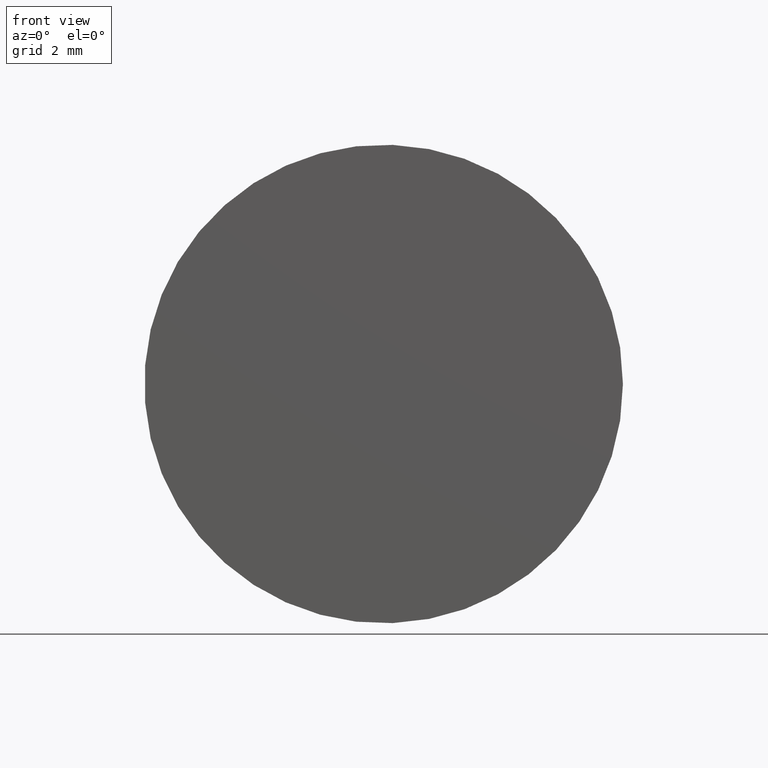
[diagram: clean part render]
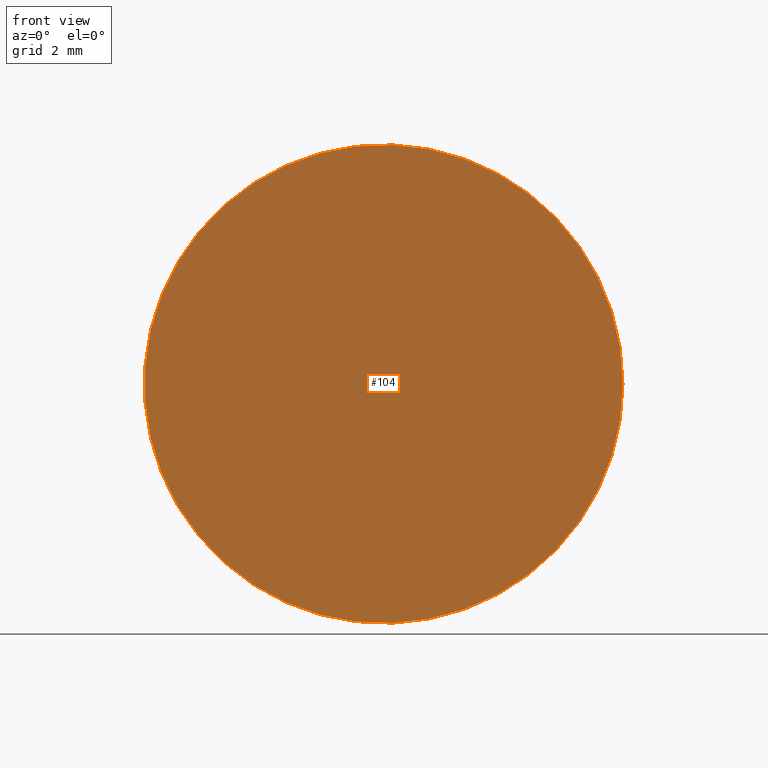
[diagram: same view with one face highlighted and labeled with its STEP entity id]
A machine part, front view. The second image highlights one B-rep face of the part: STEP entity #104.
In plain terms, the highlighted planar face has unit normal (0, -1, 0).
Its self-contained STEP definition (entity closure, byte-faithful):
#21=PLANE('',#123);
#37=FACE_OUTER_BOUND('',#53,.T.);
#53=EDGE_LOOP('',(#93));
#59=CIRCLE('',#117,6.);
#67=VERTEX_POINT('',#176);
#75=EDGE_CURVE('',#67,#67,#59,.T.);
#93=ORIENTED_EDGE('',*,*,#75,.T.);
#104=ADVANCED_FACE('',(#37),#21,.T.);
#117=AXIS2_PLACEMENT_3D('',#177,#146,#147);
#123=AXIS2_PLACEMENT_3D('',#185,#158,#159);
#146=DIRECTION('center_axis',(0.,-1.,0.));
#147=DIRECTION('ref_axis',(1.,0.,0.));
#158=DIRECTION('center_axis',(0.,-1.,0.));
#159=DIRECTION('ref_axis',(0.,0.,-1.));
#176=CARTESIAN_POINT('',(6.,1.10218211923262E-15,0.));
#177=CARTESIAN_POINT('Origin',(0.,1.11022302462516E-15,0.));
#185=CARTESIAN_POINT('Origin',(0.,-1.23259516440783E-31,0.));